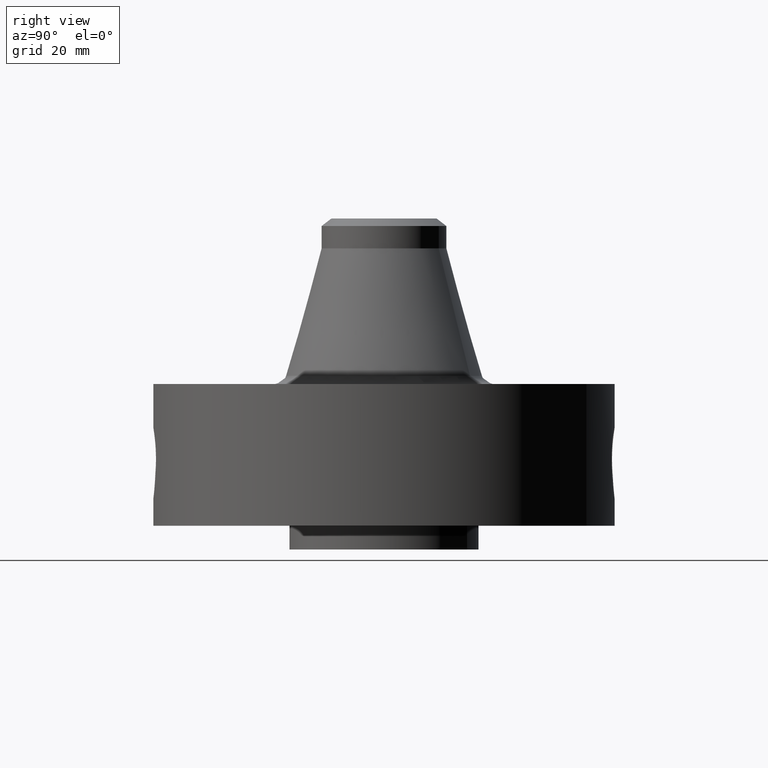
[diagram: clean part render]
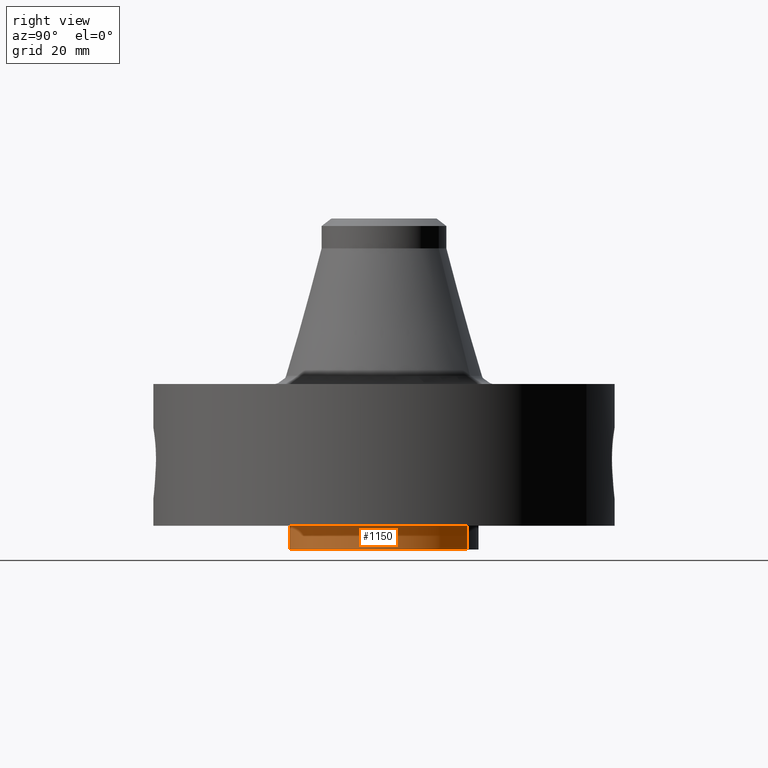
[diagram: same view with one face highlighted and labeled with its STEP entity id]
A machine part, right view. The second image highlights one B-rep face of the part: STEP entity #1150.
In plain terms, the highlighted cylindrical surface (partial cylindrical patch) has radius 25.4 mm, axis along (0, 0, -1).
Its self-contained STEP definition (entity closure, byte-faithful):
#245=AXIS2_PLACEMENT_3D('Circle Axis2P3D',#243,#244,$) ;
#1123=AXIS2_PLACEMENT_3D('Cylinder Axis2P3D',#1120,#1121,#1122) ;
#1127=AXIS2_PLACEMENT_3D('Circle Axis2P3D',#1125,#1126,$) ;
#243=CARTESIAN_POINT('Axis2P3D Location',(0.,0.,0.250000000001)) ;
#247=CARTESIAN_POINT('Vertex',(0.479425538606,0.877582561894,0.250000000001)) ;
#249=CARTESIAN_POINT('Vertex',(-0.479425538606,-0.877582561894,0.250000000001)) ;
#1120=CARTESIAN_POINT('Axis2P3D Location',(0.,0.,1.75000000001)) ;
#1125=CARTESIAN_POINT('Axis2P3D Location',(0.,0.,0.)) ;
#1129=CARTESIAN_POINT('Vertex',(0.479425538606,0.877582561894,0.)) ;
#1131=CARTESIAN_POINT('Vertex',(-0.479425538606,-0.877582561894,0.)) ;
#1134=CARTESIAN_POINT('Line Origine',(0.479425538606,0.877582561894,0.125000000001)) ;
#1139=CARTESIAN_POINT('Line Origine',(-0.479425538606,-0.877582561894,0.125000000001)) ;
#244=DIRECTION('Axis2P3D Direction',(0.,0.,-0.0393700787402)) ;
#1121=DIRECTION('Axis2P3D Direction',(0.,0.,-0.0393700787402)) ;
#1122=DIRECTION('Axis2P3D XDirection',(-0.0188750212049,-0.0345504945626,0.)) ;
#1126=DIRECTION('Axis2P3D Direction',(0.,0.,-0.0393700787402)) ;
#1135=DIRECTION('Vector Direction',(0.,0.,-0.0393700787402)) ;
#1140=DIRECTION('Vector Direction',(0.,0.,-0.0393700787402)) ;
#1136=VECTOR('Line Direction',#1135,0.0393700787402) ;
#1141=VECTOR('Line Direction',#1140,0.0393700787402) ;
#1145=ORIENTED_EDGE('',*,*,#1133,.F.) ;
#1146=ORIENTED_EDGE('',*,*,#1138,.T.) ;
#1147=ORIENTED_EDGE('',*,*,#251,.T.) ;
#1148=ORIENTED_EDGE('',*,*,#1143,.F.) ;
#1150=ADVANCED_FACE('PartBody',(#1149),#1124,.T.) ;
#246=CIRCLE('generated circle',#245,1.) ;
#1128=CIRCLE('generated circle',#1127,1.) ;
#1124=CYLINDRICAL_SURFACE('generated cylinder',#1123,1.) ;
#251=EDGE_CURVE('',#248,#250,#246,.T.) ;
#1133=EDGE_CURVE('',#1130,#1132,#1128,.T.) ;
#1138=EDGE_CURVE('',#1130,#248,#1137,.F.) ;
#1143=EDGE_CURVE('',#1132,#250,#1142,.F.) ;
#1144=EDGE_LOOP('',(#1145,#1146,#1147,#1148)) ;
#1149=FACE_OUTER_BOUND('',#1144,.T.) ;
#1137=LINE('Line',#1134,#1136) ;
#1142=LINE('Line',#1139,#1141) ;
#248=VERTEX_POINT('',#247) ;
#250=VERTEX_POINT('',#249) ;
#1130=VERTEX_POINT('',#1129) ;
#1132=VERTEX_POINT('',#1131) ;